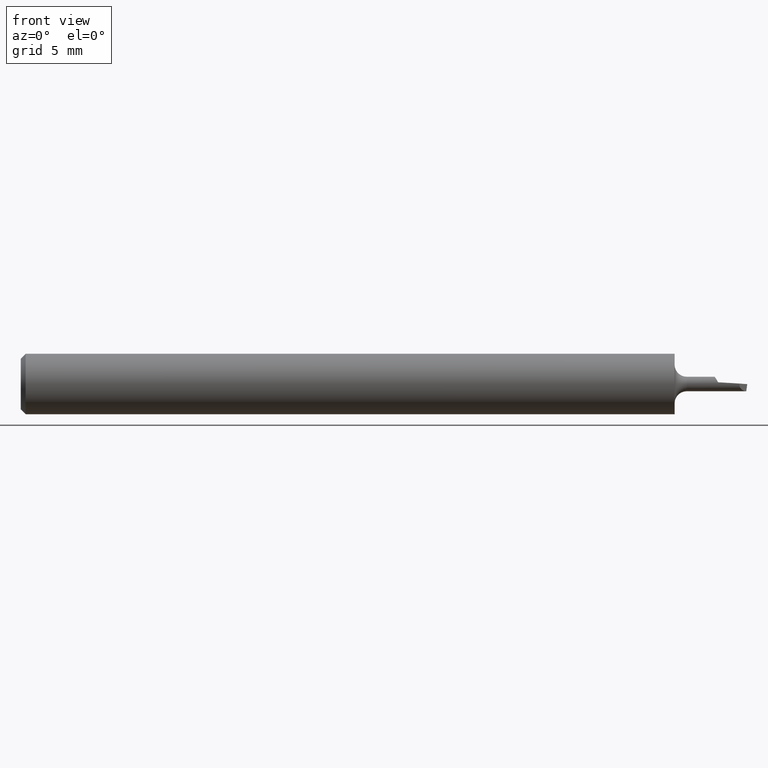
[diagram: clean part render]
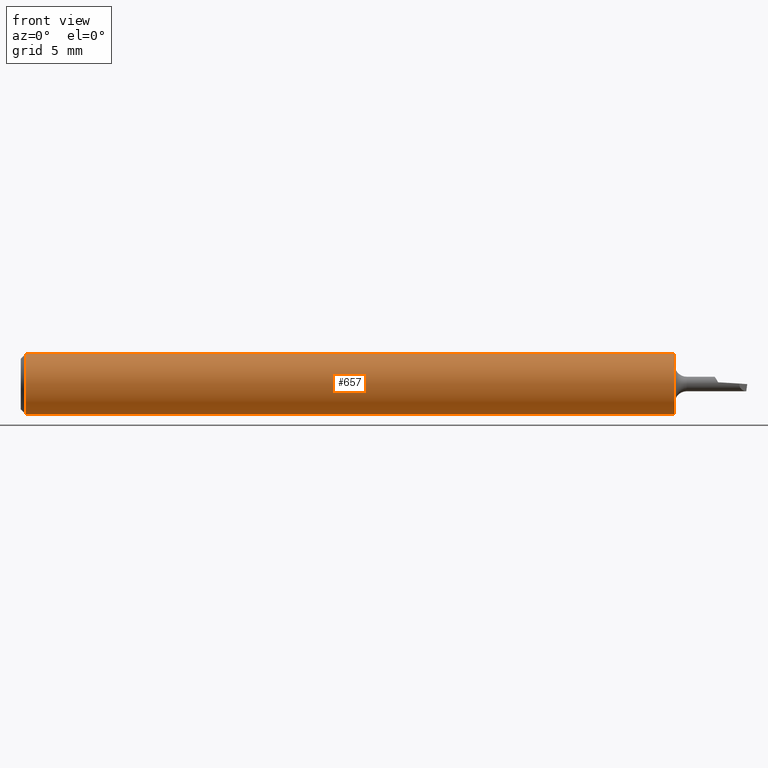
[diagram: same view with one face highlighted and labeled with its STEP entity id]
A machine part, front view. The second image highlights one B-rep face of the part: STEP entity #657.
In plain terms, the highlighted cylindrical surface (edge-blend (fillet) strip) has radius 1.5837 mm, axis along (-1, -0, -0).
Its self-contained STEP definition (entity closure, byte-faithful):
#36 = CARTESIAN_POINT ( 'NONE',  ( 1.350000000000000311, 7.635672792683743590E-18, -0.06234999999999997489 ) ) ;
#58 = AXIS2_PLACEMENT_3D ( 'NONE', #222, #460, #595 ) ;
#68 = CARTESIAN_POINT ( 'NONE',  ( 1.350000000000000311, 0.000000000000000000, 0.000000000000000000 ) ) ;
#74 = CARTESIAN_POINT ( 'NONE',  ( 0.01000000000000000021, 0.000000000000000000, 0.000000000000000000 ) ) ;
#75 = LINE ( 'NONE', #609, #572 ) ;
#86 = VERTEX_POINT ( 'NONE', #36 ) ;
#107 = VECTOR ( 'NONE', #510, 39.37007874015748143 ) ;
#150 = VERTEX_POINT ( 'NONE', #167 ) ;
#167 = CARTESIAN_POINT ( 'NONE',  ( 1.350000000000000311, 0.000000000000000000, 0.06234999999999997489 ) ) ;
#184 = DIRECTION ( 'NONE',  ( 1.000000000000000000, 0.000000000000000000, 0.000000000000000000 ) ) ;
#222 = CARTESIAN_POINT ( 'NONE',  ( 0.000000000000000000, 0.000000000000000000, 0.000000000000000000 ) ) ;
#233 = EDGE_CURVE ( 'NONE', #150, #86, #708, .T. ) ;
#281 = CYLINDRICAL_SURFACE ( 'NONE', #58, 0.06234999999999997489 ) ;
#297 = VERTEX_POINT ( 'NONE', #537 ) ;
#369 = CARTESIAN_POINT ( 'NONE',  ( 0.000000000000000000, 7.635672792683743590E-18, -0.06234999999999997489 ) ) ;
#381 = ORIENTED_EDGE ( 'NONE', *, *, #422, .T. ) ;
#420 = CIRCLE ( 'NONE', #587, 0.06235000000000000264 ) ;
#422 = EDGE_CURVE ( 'NONE', #150, #495, #75, .T. ) ;
#433 = DIRECTION ( 'NONE',  ( -1.000000000000000000, -0.000000000000000000, -0.000000000000000000 ) ) ;
#448 = EDGE_CURVE ( 'NONE', #86, #297, #497, .T. ) ;
#460 = DIRECTION ( 'NONE',  ( -1.000000000000000000, -0.000000000000000000, -0.000000000000000000 ) ) ;
#471 = AXIS2_PLACEMENT_3D ( 'NONE', #68, #184, #533 ) ;
#476 = DIRECTION ( 'NONE',  ( 0.000000000000000000, 0.000000000000000000, 1.000000000000000000 ) ) ;
#479 = DIRECTION ( 'NONE',  ( -1.000000000000000000, -0.000000000000000000, -0.000000000000000000 ) ) ;
#495 = VERTEX_POINT ( 'NONE', #712 ) ;
#497 = LINE ( 'NONE', #369, #107 ) ;
#504 = ORIENTED_EDGE ( 'NONE', *, *, #689, .F. ) ;
#510 = DIRECTION ( 'NONE',  ( -1.000000000000000000, -0.000000000000000000, -0.000000000000000000 ) ) ;
#533 = DIRECTION ( 'NONE',  ( 0.000000000000000000, 0.000000000000000000, -1.000000000000000000 ) ) ;
#537 = CARTESIAN_POINT ( 'NONE',  ( 0.01000000000000000021, 7.635672792683748212E-18, -0.06235000000000000264 ) ) ;
#572 = VECTOR ( 'NONE', #433, 39.37007874015748143 ) ;
#578 = FACE_OUTER_BOUND ( 'NONE', #664, .T. ) ;
#587 = AXIS2_PLACEMENT_3D ( 'NONE', #74, #479, #476 ) ;
#595 = DIRECTION ( 'NONE',  ( 0.000000000000000000, 0.000000000000000000, 1.000000000000000000 ) ) ;
#603 = ORIENTED_EDGE ( 'NONE', *, *, #233, .F. ) ;
#609 = CARTESIAN_POINT ( 'NONE',  ( 0.000000000000000000, 0.000000000000000000, 0.06234999999999997489 ) ) ;
#626 = ORIENTED_EDGE ( 'NONE', *, *, #448, .F. ) ;
#657 = ADVANCED_FACE ( 'NONE', ( #578 ), #281, .T. ) ;
#664 = EDGE_LOOP ( 'NONE', ( #626, #603, #381, #504 ) ) ;
#689 = EDGE_CURVE ( 'NONE', #297, #495, #420, .T. ) ;
#708 = CIRCLE ( 'NONE', #471, 0.06234999999999997489 ) ;
#712 = CARTESIAN_POINT ( 'NONE',  ( 0.01000000000000000021, 0.000000000000000000, 0.06235000000000000264 ) ) ;